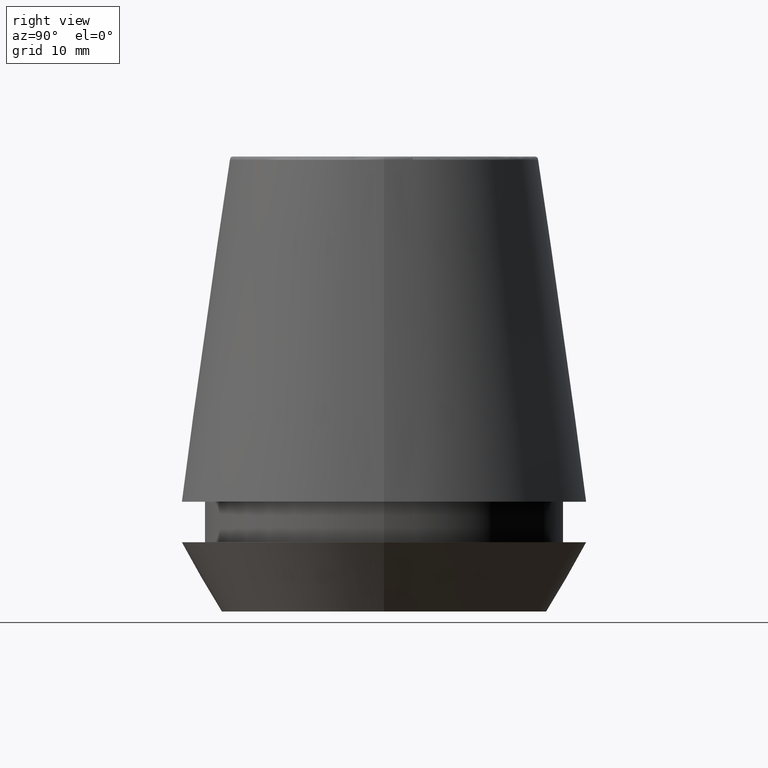
[diagram: clean part render]
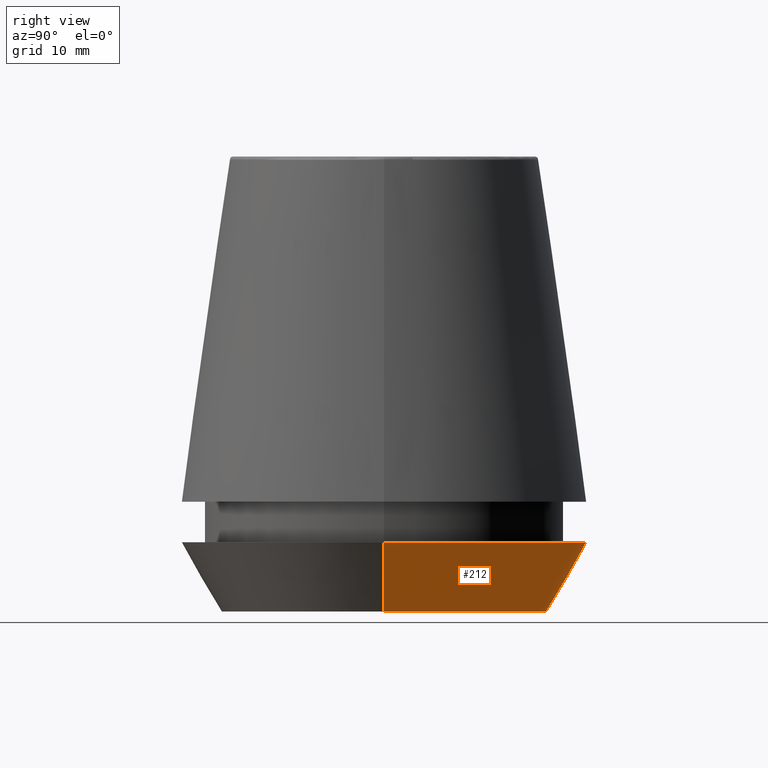
[diagram: same view with one face highlighted and labeled with its STEP entity id]
A machine part, right view. The second image highlights one B-rep face of the part: STEP entity #212.
In plain terms, the highlighted conical surface has half-angle 30 deg.
Its self-contained STEP definition (entity closure, byte-faithful):
#2 = CIRCLE ( 'NONE', #361, 20.50000000000000000 ) ;
#5 = CARTESIAN_POINT ( 'NONE',  ( 0.0000000000000000000, 0.0000000000000000000, 0.0000000000000000000 ) ) ;
#6 = CARTESIAN_POINT ( 'NONE',  ( 16.45854811567268100, 0.0000000000000000000, 0.0000000000000000000 ) ) ;
#10 = LINE ( 'NONE', #6, #353 ) ;
#17 = CIRCLE ( 'NONE', #71, 16.45854811567268100 ) ;
#25 = EDGE_CURVE ( 'NONE', #278, #140, #17, .T. ) ;
#32 = DIRECTION ( 'NONE',  ( 1.000000000000000000, 0.0000000000000000000, 0.0000000000000000000 ) ) ;
#57 = DIRECTION ( 'NONE',  ( -0.4999999999999941700, 6.123233995736694500E-017, 0.8660254037844420400 ) ) ;
#71 = AXIS2_PLACEMENT_3D ( 'NONE', #5, #205, #32 ) ;
#94 = AXIS2_PLACEMENT_3D ( 'NONE', #146, #228, #312 ) ;
#95 = CARTESIAN_POINT ( 'NONE',  ( 0.0000000000000000000, 0.0000000000000000000, 7.000000000000006200 ) ) ;
#125 = DIRECTION ( 'NONE',  ( 1.000000000000000000, 0.0000000000000000000, 0.0000000000000000000 ) ) ;
#140 = VERTEX_POINT ( 'NONE', #147 ) ;
#146 = CARTESIAN_POINT ( 'NONE',  ( 0.0000000000000000000, 0.0000000000000000000, 0.0000000000000000000 ) ) ;
#147 = CARTESIAN_POINT ( 'NONE',  ( -16.45854811567268100, 2.263058382549599700E-015, 0.0000000000000000000 ) ) ;
#153 = CARTESIAN_POINT ( 'NONE',  ( 16.45854811567268100, 0.0000000000000000000, 0.0000000000000000000 ) ) ;
#157 = DIRECTION ( 'NONE',  ( 0.4999999999999941700, 0.0000000000000000000, 0.8660254037844420400 ) ) ;
#181 = CARTESIAN_POINT ( 'NONE',  ( -16.45854811567268100, 2.015590826847124800E-015, 0.0000000000000000000 ) ) ;
#195 = ORIENTED_EDGE ( 'NONE', *, *, #25, .T. ) ;
#205 = DIRECTION ( 'NONE',  ( -0.0000000000000000000, -0.0000000000000000000, 1.000000000000000000 ) ) ;
#212 = ADVANCED_FACE ( 'NONE', ( #264 ), #301, .T. ) ;
#214 = EDGE_CURVE ( 'NONE', #140, #271, #255, .T. ) ;
#228 = DIRECTION ( 'NONE',  ( -0.0000000000000000000, -0.0000000000000000000, 1.000000000000000000 ) ) ;
#249 = CARTESIAN_POINT ( 'NONE',  ( 20.50000000000000000, 0.0000000000000000000, 7.000000000000006200 ) ) ;
#255 = LINE ( 'NONE', #181, #302 ) ;
#264 = FACE_OUTER_BOUND ( 'NONE', #335, .T. ) ;
#271 = VERTEX_POINT ( 'NONE', #287 ) ;
#278 = VERTEX_POINT ( 'NONE', #153 ) ;
#287 = CARTESIAN_POINT ( 'NONE',  ( -20.50000000000000000, 2.510525938252074100E-015, 7.000000000000006200 ) ) ;
#293 = DIRECTION ( 'NONE',  ( -0.0000000000000000000, -0.0000000000000000000, 1.000000000000000000 ) ) ;
#301 = CONICAL_SURFACE ( 'NONE', #94, 16.45854811567268100, 0.5235987755982921500 ) ;
#302 = VECTOR ( 'NONE', #57, 1000.000000000000000 ) ;
#304 = VERTEX_POINT ( 'NONE', #249 ) ;
#312 = DIRECTION ( 'NONE',  ( 1.000000000000000000, 0.0000000000000000000, 0.0000000000000000000 ) ) ;
#335 = EDGE_LOOP ( 'NONE', ( #195, #360, #336, #343 ) ) ;
#336 = ORIENTED_EDGE ( 'NONE', *, *, #352, .F. ) ;
#343 = ORIENTED_EDGE ( 'NONE', *, *, #377, .F. ) ;
#352 = EDGE_CURVE ( 'NONE', #304, #271, #2, .T. ) ;
#353 = VECTOR ( 'NONE', #157, 1000.000000000000000 ) ;
#360 = ORIENTED_EDGE ( 'NONE', *, *, #214, .T. ) ;
#361 = AXIS2_PLACEMENT_3D ( 'NONE', #95, #293, #125 ) ;
#377 = EDGE_CURVE ( 'NONE', #278, #304, #10, .T. ) ;